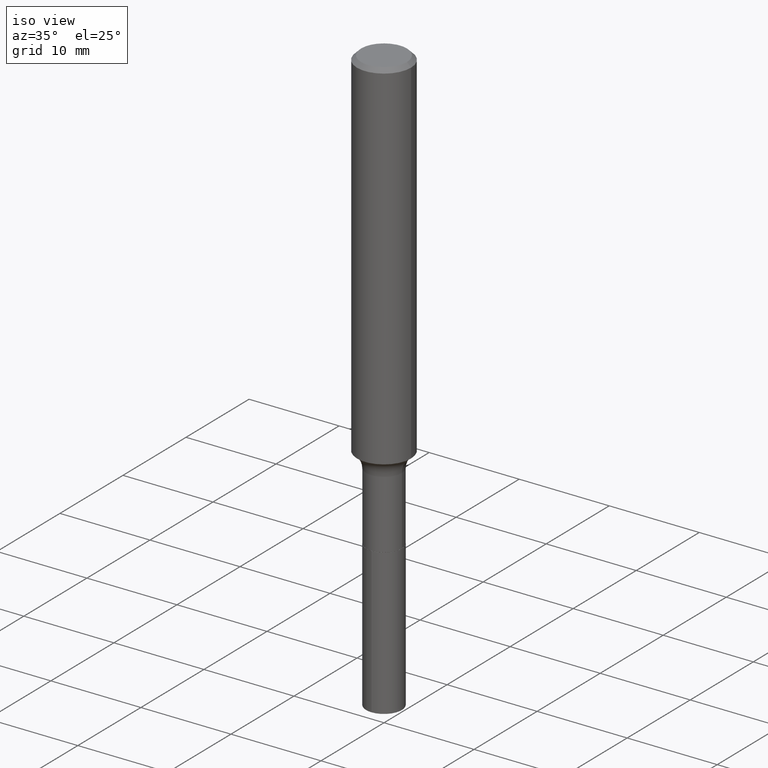
[diagram: clean part render]
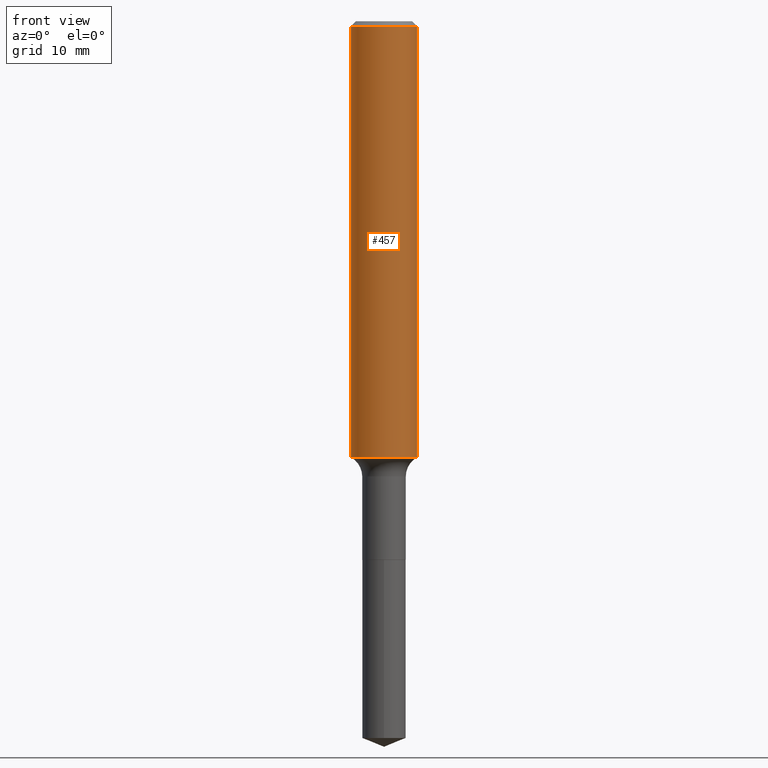
[diagram: tour spotlight — one face highlighted and labeled with its STEP entity id]
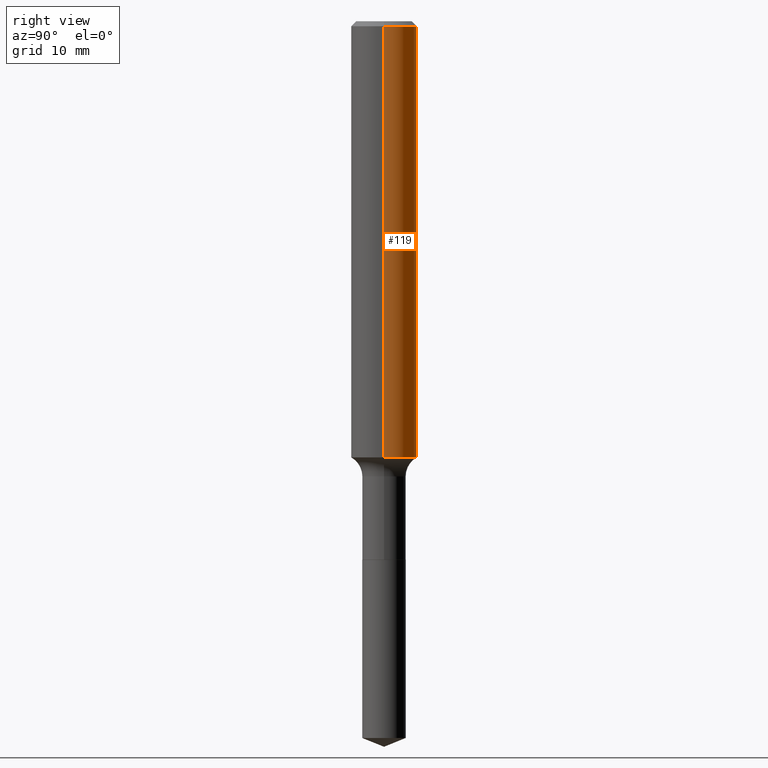
[diagram: tour spotlight — one face highlighted and labeled with its STEP entity id]
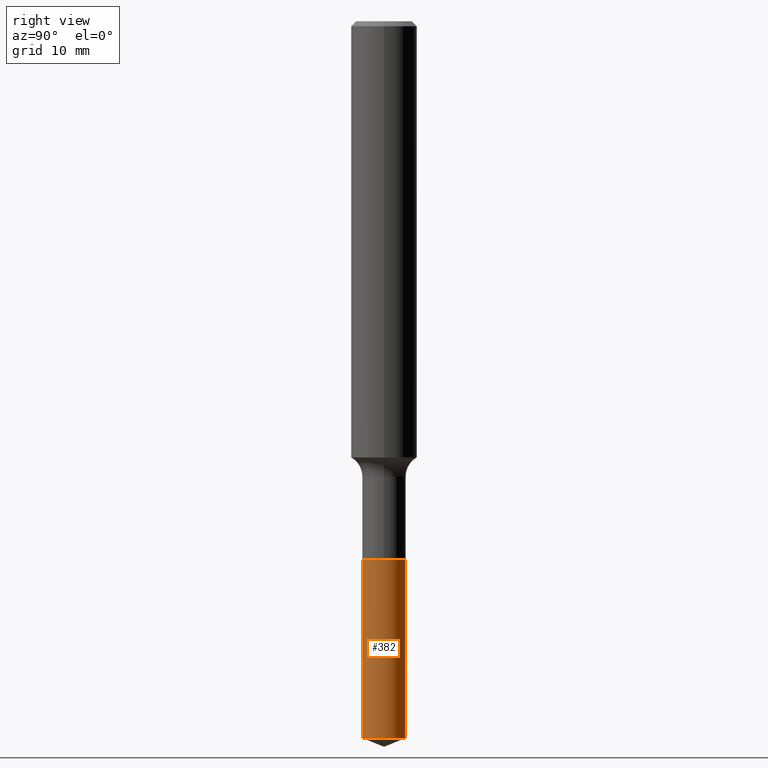
[diagram: tour spotlight — one face highlighted and labeled with its STEP entity id]
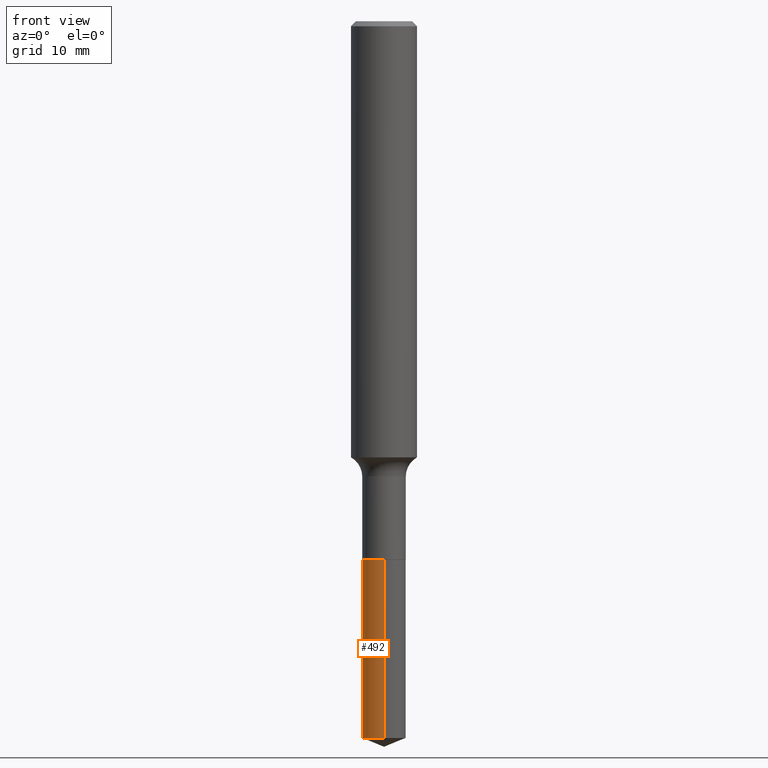
[diagram: tour spotlight — one face highlighted and labeled with its STEP entity id]
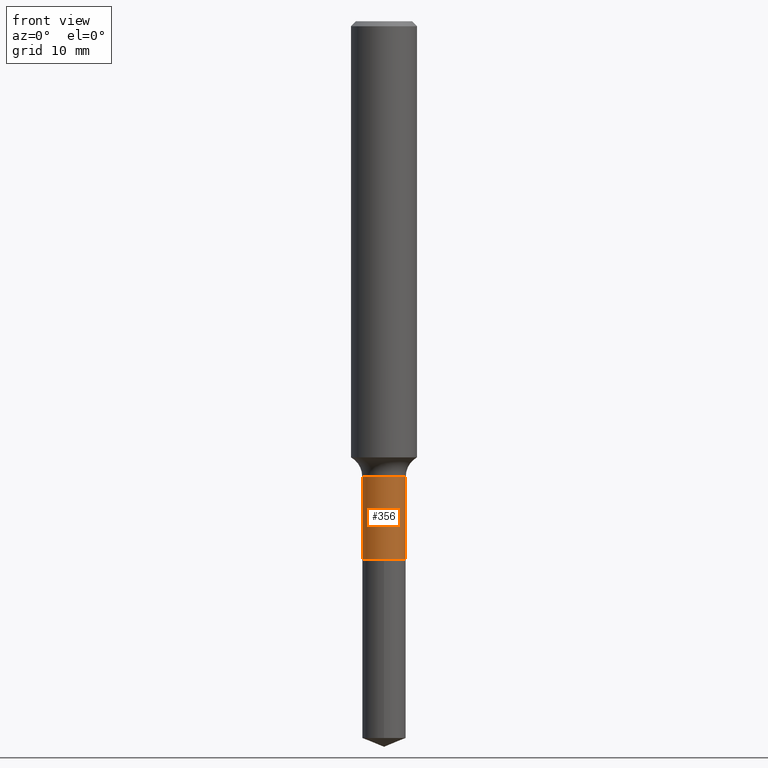
[diagram: tour spotlight — one face highlighted and labeled with its STEP entity id]
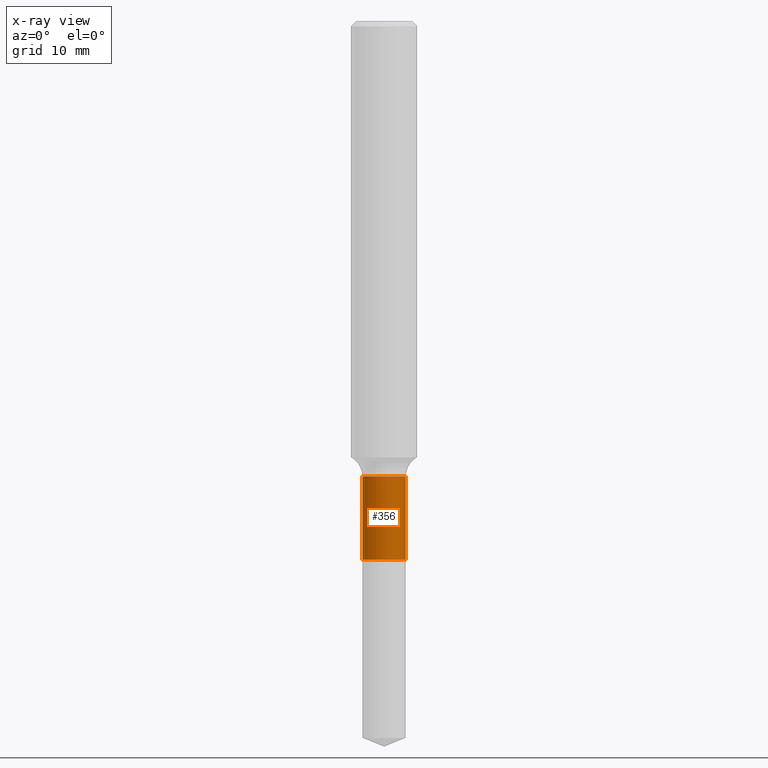
[diagram: x-ray of the same camera — body ghosted, this tour face saturated]
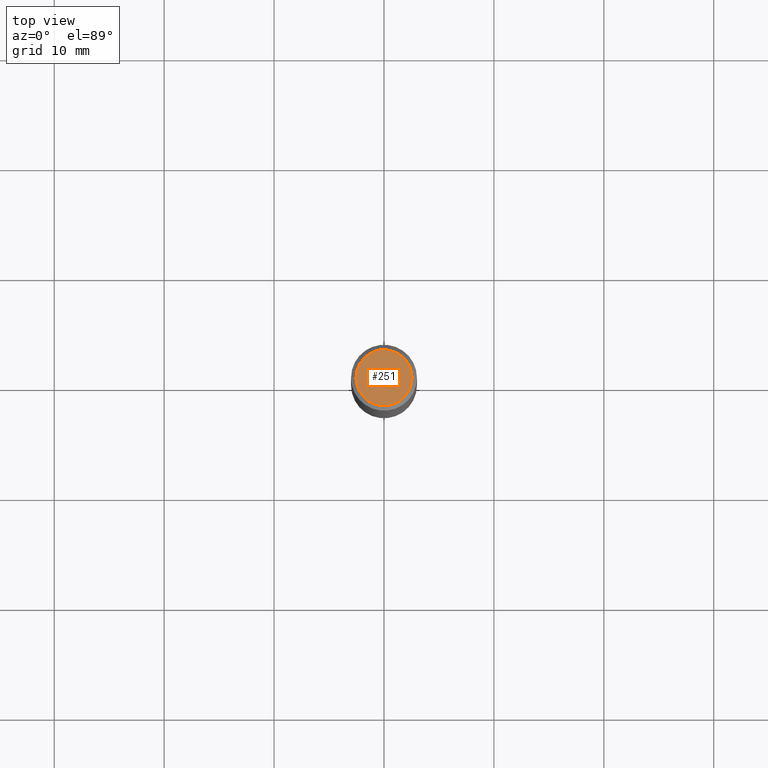
[diagram: tour spotlight — one face highlighted and labeled with its STEP entity id]
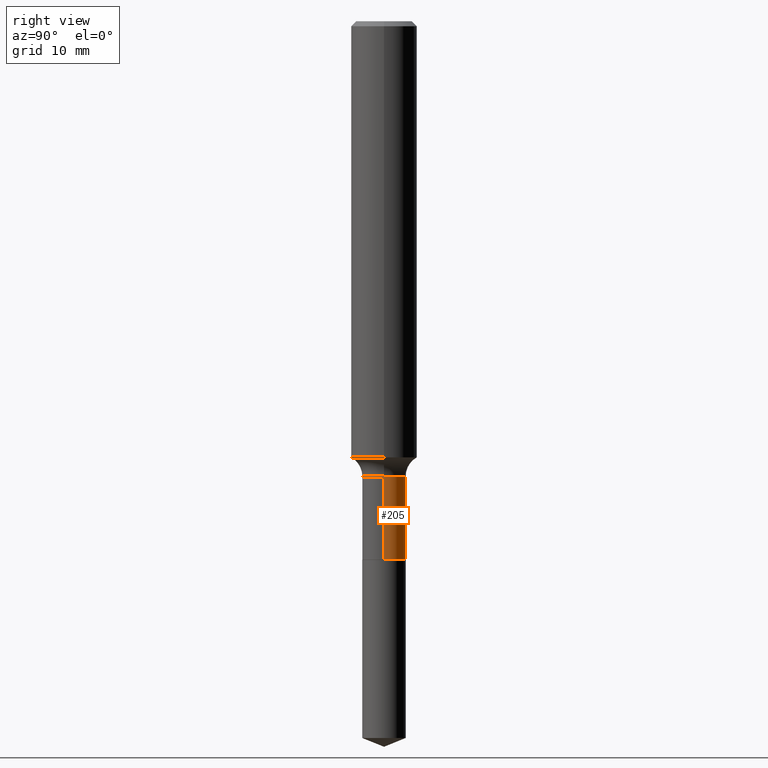
[diagram: tour spotlight — one face highlighted and labeled with its STEP entity id]
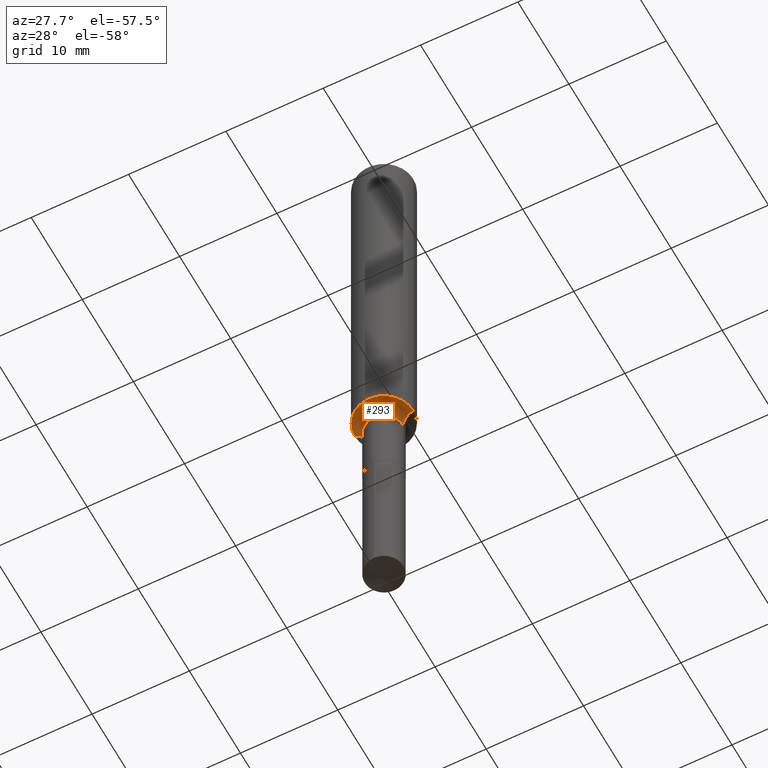
[diagram: tour spotlight — one face highlighted and labeled with its STEP entity id]
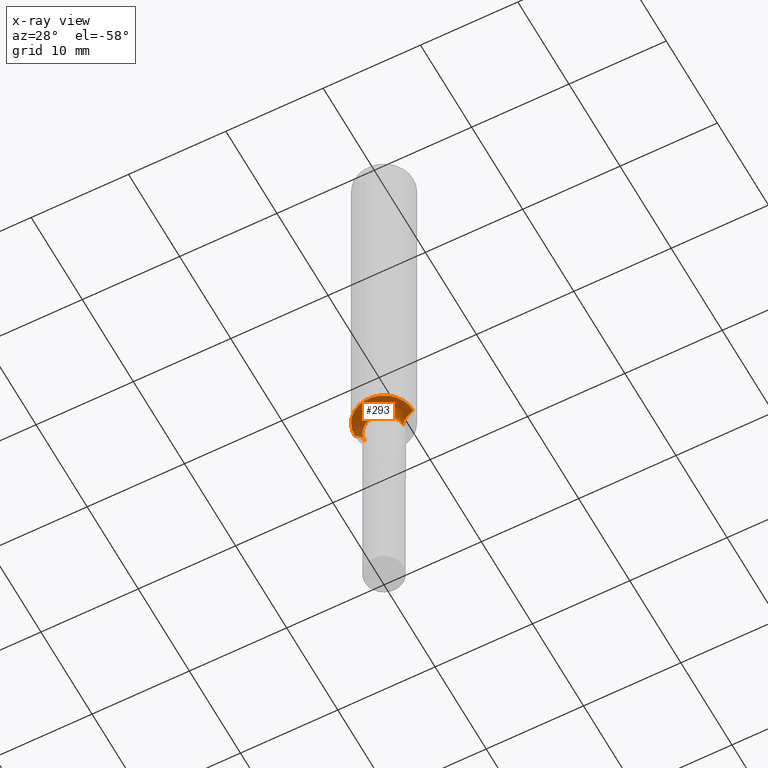
[diagram: x-ray of the same camera — body ghosted, this tour face saturated]
A machine part: a face-by-face anatomy tour. The part has 17 B-rep faces; the first image is the clean iso view, then the 8 largest visible faces are spotlighted one at a time (largest first), each with its STEP entity span.

Face 1 — front view, entity #457. In plain terms, the highlighted cylindrical surface (edge-blend (fillet) strip) has radius 2.9997 mm, axis along (-0, 0, 1).
Definition (entity closure, byte-faithful):
#3 = CYLINDRICAL_SURFACE ( 'NONE', #459, 0.1181000000000001077 ) ;
#13 = CARTESIAN_POINT ( 'NONE',  ( 0.1180999999999999966, -8.865394841523547570E-16, -0.01771500000000010913 ) ) ;
#25 = LINE ( 'NONE', #63, #409 ) ;
#45 = CIRCLE ( 'NONE', #116, 0.1180999999999999966 ) ;
#56 = FACE_OUTER_BOUND ( 'NONE', #448, .T. ) ;
#63 = CARTESIAN_POINT ( 'NONE',  ( -0.1181000000000001077, 8.391509709326790846E-16, -5.809262341591049389E-30 ) ) ;
#91 = DIRECTION ( 'NONE',  ( -2.445468806185136597E-29, 3.491481338843145583E-15, 1.000000000000000000 ) ) ;
#99 = VERTEX_POINT ( 'NONE', #13 ) ;
#102 = DIRECTION ( 'NONE',  ( -2.445468806185136877E-29, 3.491481338843145188E-15, 1.000000000000000000 ) ) ;
#116 = AXIS2_PLACEMENT_3D ( 'NONE', #284, #91, #318 ) ;
#126 = EDGE_CURVE ( 'NONE', #307, #99, #45, .T. ) ;
#134 = ORIENTED_EDGE ( 'NONE', *, *, #368, .F. ) ;
#144 = CARTESIAN_POINT ( 'NONE',  ( -0.1181000000000001632, -4.614481620681204759E-15, -1.561982454536293918 ) ) ;
#214 = CARTESIAN_POINT ( 'NONE',  ( 0.000000000000000000, 0.000000000000000000, 0.000000000000000000 ) ) ;
#231 = CIRCLE ( 'NONE', #275, 0.1181000000000002048 ) ;
#255 = DIRECTION ( 'NONE',  ( -2.445468806185136597E-29, 3.491481338843145583E-15, 1.000000000000000000 ) ) ;
#256 = EDGE_CURVE ( 'NONE', #455, #99, #332, .T. ) ;
#265 = VERTEX_POINT ( 'NONE', #144 ) ;
#275 = AXIS2_PLACEMENT_3D ( 'NONE', #373, #255, #370 ) ;
#283 = VECTOR ( 'NONE', #482, 39.37007874015748143 ) ;
#284 = CARTESIAN_POINT ( 'NONE',  ( 4.332147990156996744E-31, -6.185159191760670395E-17, -0.01771500000000010913 ) ) ;
#290 = DIRECTION ( 'NONE',  ( -2.445468806185136597E-29, 3.491481338843145583E-15, 1.000000000000000000 ) ) ;
#307 = VERTEX_POINT ( 'NONE', #437 ) ;
#318 = DIRECTION ( 'NONE',  ( 1.000000000000000000, -6.982962677686266711E-15, 0.000000000000000000 ) ) ;
#325 = ORIENTED_EDGE ( 'NONE', *, *, #256, .T. ) ;
#327 = ORIENTED_EDGE ( 'NONE', *, *, #126, .F. ) ;
#332 = LINE ( 'NONE', #475, #283 ) ;
#346 = EDGE_CURVE ( 'NONE', #265, #455, #231, .T. ) ;
#368 = EDGE_CURVE ( 'NONE', #265, #307, #25, .T. ) ;
#370 = DIRECTION ( 'NONE',  ( 1.000000000000000000, -6.982962677686268288E-15, 0.000000000000000000 ) ) ;
#373 = CARTESIAN_POINT ( 'NONE',  ( 3.819779368377000263E-29, -5.453632591613882956E-15, -1.561982454536293918 ) ) ;
#392 = CARTESIAN_POINT ( 'NONE',  ( 0.1181000000000001632, -6.278320483848632008E-15, -1.561982454536293918 ) ) ;
#409 = VECTOR ( 'NONE', #102, 39.37007874015748143 ) ;
#411 = ORIENTED_EDGE ( 'NONE', *, *, #346, .T. ) ;
#426 = DIRECTION ( 'NONE',  ( 1.000000000000000000, -6.982962677686266711E-15, 4.876176775795935793E-29 ) ) ;
#437 = CARTESIAN_POINT ( 'NONE',  ( -0.1180999999999999966, -1.918591120833065197E-15, -0.01771500000000010913 ) ) ;
#448 = EDGE_LOOP ( 'NONE', ( #134, #411, #325, #327 ) ) ;
#455 = VERTEX_POINT ( 'NONE', #392 ) ;
#457 = ADVANCED_FACE ( 'NONE', ( #56 ), #3, .T. ) ;
#459 = AXIS2_PLACEMENT_3D ( 'NONE', #214, #290, #426 ) ;
#475 = CARTESIAN_POINT ( 'NONE',  ( 0.1181000000000001077, -8.246878922347488542E-16, 5.758764772215005345E-30 ) ) ;
#482 = DIRECTION ( 'NONE',  ( -2.445468806185136877E-29, 3.491481338843145188E-15, 1.000000000000000000 ) ) ;

Face 2 — right view, entity #119. In plain terms, the highlighted cylindrical surface (edge-blend (fillet) strip) has radius 2.9997 mm, axis along (-0, 0, 1).
Definition (entity closure, byte-faithful):
#6 = CYLINDRICAL_SURFACE ( 'NONE', #8, 0.1181000000000001077 ) ;
#8 = AXIS2_PLACEMENT_3D ( 'NONE', #465, #354, #467 ) ;
#9 = DIRECTION ( 'NONE',  ( -2.445468806185136597E-29, 3.491481338843145583E-15, 1.000000000000000000 ) ) ;
#13 = CARTESIAN_POINT ( 'NONE',  ( 0.1180999999999999966, -8.865394841523547570E-16, -0.01771500000000010913 ) ) ;
#25 = LINE ( 'NONE', #63, #409 ) ;
#37 = CIRCLE ( 'NONE', #220, 0.1181000000000002048 ) ;
#63 = CARTESIAN_POINT ( 'NONE',  ( -0.1181000000000001077, 8.391509709326790846E-16, -5.809262341591049389E-30 ) ) ;
#78 = ORIENTED_EDGE ( 'NONE', *, *, #473, .T. ) ;
#90 = CIRCLE ( 'NONE', #372, 0.1180999999999999966 ) ;
#94 = ORIENTED_EDGE ( 'NONE', *, *, #399, .F. ) ;
#99 = VERTEX_POINT ( 'NONE', #13 ) ;
#102 = DIRECTION ( 'NONE',  ( -2.445468806185136877E-29, 3.491481338843145188E-15, 1.000000000000000000 ) ) ;
#108 = DIRECTION ( 'NONE',  ( -2.445468806185136597E-29, 3.491481338843145583E-15, 1.000000000000000000 ) ) ;
#119 = ADVANCED_FACE ( 'NONE', ( #203 ), #6, .T. ) ;
#144 = CARTESIAN_POINT ( 'NONE',  ( -0.1181000000000001632, -4.614481620681204759E-15, -1.561982454536293918 ) ) ;
#146 = ORIENTED_EDGE ( 'NONE', *, *, #256, .F. ) ;
#154 = EDGE_LOOP ( 'NONE', ( #78, #388, #94, #146 ) ) ;
#163 = CARTESIAN_POINT ( 'NONE',  ( 3.819779368377000263E-29, -5.453632591613882956E-15, -1.561982454536293918 ) ) ;
#170 = DIRECTION ( 'NONE',  ( 1.000000000000000000, -6.982962677686268288E-15, 0.000000000000000000 ) ) ;
#203 = FACE_OUTER_BOUND ( 'NONE', #154, .T. ) ;
#220 = AXIS2_PLACEMENT_3D ( 'NONE', #163, #9, #170 ) ;
#228 = DIRECTION ( 'NONE',  ( 1.000000000000000000, -6.982962677686266711E-15, 0.000000000000000000 ) ) ;
#256 = EDGE_CURVE ( 'NONE', #455, #99, #332, .T. ) ;
#265 = VERTEX_POINT ( 'NONE', #144 ) ;
#283 = VECTOR ( 'NONE', #482, 39.37007874015748143 ) ;
#307 = VERTEX_POINT ( 'NONE', #437 ) ;
#332 = LINE ( 'NONE', #475, #283 ) ;
#354 = DIRECTION ( 'NONE',  ( -2.445468806185136597E-29, 3.491481338843145583E-15, 1.000000000000000000 ) ) ;
#368 = EDGE_CURVE ( 'NONE', #265, #307, #25, .T. ) ;
#372 = AXIS2_PLACEMENT_3D ( 'NONE', #439, #108, #228 ) ;
#388 = ORIENTED_EDGE ( 'NONE', *, *, #368, .T. ) ;
#392 = CARTESIAN_POINT ( 'NONE',  ( 0.1181000000000001632, -6.278320483848632008E-15, -1.561982454536293918 ) ) ;
#399 = EDGE_CURVE ( 'NONE', #99, #307, #90, .T. ) ;
#409 = VECTOR ( 'NONE', #102, 39.37007874015748143 ) ;
#437 = CARTESIAN_POINT ( 'NONE',  ( -0.1180999999999999966, -1.918591120833065197E-15, -0.01771500000000010913 ) ) ;
#439 = CARTESIAN_POINT ( 'NONE',  ( 4.332147990156996744E-31, -6.185159191760670395E-17, -0.01771500000000010913 ) ) ;
#455 = VERTEX_POINT ( 'NONE', #392 ) ;
#465 = CARTESIAN_POINT ( 'NONE',  ( 0.000000000000000000, 0.000000000000000000, 0.000000000000000000 ) ) ;
#467 = DIRECTION ( 'NONE',  ( 1.000000000000000000, -6.982962677686266711E-15, 4.876176775795935793E-29 ) ) ;
#473 = EDGE_CURVE ( 'NONE', #455, #265, #37, .T. ) ;
#475 = CARTESIAN_POINT ( 'NONE',  ( 0.1181000000000001077, -8.246878922347488542E-16, 5.758764772215005345E-30 ) ) ;
#482 = DIRECTION ( 'NONE',  ( -2.445468806185136877E-29, 3.491481338843145188E-15, 1.000000000000000000 ) ) ;

Face 3 — right view, entity #382. In plain terms, the highlighted cylindrical surface (edge-blend (fillet) strip) has radius 1.9837 mm, axis along (-0, 0, 1).
Definition (entity closure, byte-faithful):
#20 = VERTEX_POINT ( 'NONE', #397 ) ;
#22 = DIRECTION ( 'NONE',  ( -2.445416049279205825E-29, 3.491556889735175498E-15, 1.000000000000000000 ) ) ;
#31 = ORIENTED_EDGE ( 'NONE', *, *, #438, .T. ) ;
#36 = VERTEX_POINT ( 'NONE', #440 ) ;
#52 = CARTESIAN_POINT ( 'NONE',  ( 4.717553874011746679E-29, -6.735416650762311704E-15, -1.929099999999999815 ) ) ;
#85 = ORIENTED_EDGE ( 'NONE', *, *, #304, .F. ) ;
#86 = DIRECTION ( 'NONE',  ( -6.982962677686265133E-15, -1.000000000000000000, 3.497884755011860410E-15 ) ) ;
#101 = LINE ( 'NONE', #142, #398 ) ;
#136 = VERTEX_POINT ( 'NONE', #289 ) ;
#142 = CARTESIAN_POINT ( 'NONE',  ( -5.453693851272501048E-16, -0.07810000000000671960, -1.929099999999999593 ) ) ;
#143 = CYLINDRICAL_SURFACE ( 'NONE', #238, 0.07810000000000000275 ) ;
#190 = LINE ( 'NONE', #260, #310 ) ;
#193 = EDGE_CURVE ( 'NONE', #136, #20, #281, .T. ) ;
#213 = DIRECTION ( 'NONE',  ( -2.445416049279205825E-29, 3.491556889735175103E-15, 1.000000000000000000 ) ) ;
#217 = CARTESIAN_POINT ( 'NONE',  ( 6.277107081647638658E-29, -8.962141525915846057E-15, -2.566845551762275246 ) ) ;
#235 = EDGE_LOOP ( 'NONE', ( #362, #31, #236, #85 ) ) ;
#236 = ORIENTED_EDGE ( 'NONE', *, *, #193, .F. ) ;
#238 = AXIS2_PLACEMENT_3D ( 'NONE', #486, #435, #262 ) ;
#239 = EDGE_CURVE ( 'NONE', #442, #36, #490, .T. ) ;
#254 = DIRECTION ( 'NONE',  ( -6.982962677686265133E-15, -1.000000000000000000, 0.000000000000000000 ) ) ;
#260 = CARTESIAN_POINT ( 'NONE',  ( 5.549338766286853006E-16, 0.07809999999999327203, -1.929100000000000259 ) ) ;
#262 = DIRECTION ( 'NONE',  ( -6.982962677686265133E-15, -1.000000000000000000, 3.497884755011860410E-15 ) ) ;
#281 = CIRCLE ( 'NONE', #377, 0.07810000000000000275 ) ;
#289 = CARTESIAN_POINT ( 'NONE',  ( -5.453693851272501048E-16, -0.07810000000000671960, -1.929099999999999593 ) ) ;
#294 = DIRECTION ( 'NONE',  ( -2.445416049279205825E-29, 3.491556889735175498E-15, 1.000000000000000000 ) ) ;
#304 = EDGE_CURVE ( 'NONE', #442, #136, #101, .T. ) ;
#310 = VECTOR ( 'NONE', #22, 39.37007874015748143 ) ;
#362 = ORIENTED_EDGE ( 'NONE', *, *, #239, .T. ) ;
#366 = FACE_OUTER_BOUND ( 'NONE', #235, .T. ) ;
#377 = AXIS2_PLACEMENT_3D ( 'NONE', #52, #420, #86 ) ;
#382 = ADVANCED_FACE ( 'NONE', ( #366 ), #143, .T. ) ;
#391 = AXIS2_PLACEMENT_3D ( 'NONE', #217, #213, #254 ) ;
#397 = CARTESIAN_POINT ( 'NONE',  ( 5.549338766287009792E-16, 0.07809999999999327203, -1.929100000000000259 ) ) ;
#398 = VECTOR ( 'NONE', #294, 39.37007874015748143 ) ;
#401 = CARTESIAN_POINT ( 'NONE',  ( -5.453693851272348206E-16, -0.07810000000000898168, -2.566845551762275246 ) ) ;
#420 = DIRECTION ( 'NONE',  ( -2.445416049279205825E-29, 3.491556889735175103E-15, 1.000000000000000000 ) ) ;
#435 = DIRECTION ( 'NONE',  ( -2.445416049279205825E-29, 3.491556889735175103E-15, 1.000000000000000000 ) ) ;
#438 = EDGE_CURVE ( 'NONE', #36, #20, #190, .T. ) ;
#440 = CARTESIAN_POINT ( 'NONE',  ( 5.549338766287010778E-16, 0.07809999999999106546, -2.566845551762275246 ) ) ;
#442 = VERTEX_POINT ( 'NONE', #401 ) ;
#486 = CARTESIAN_POINT ( 'NONE',  ( 4.717553874011746679E-29, -6.735416650762311704E-15, -1.929099999999999815 ) ) ;
#490 = CIRCLE ( 'NONE', #391, 0.07810000000000000275 ) ;

Face 4 — front view, entity #492. In plain terms, the highlighted cylindrical surface (edge-blend (fillet) strip) has radius 1.9837 mm, axis along (-0, 0, 1).
Definition (entity closure, byte-faithful):
#20 = VERTEX_POINT ( 'NONE', #397 ) ;
#22 = DIRECTION ( 'NONE',  ( -2.445416049279205825E-29, 3.491556889735175498E-15, 1.000000000000000000 ) ) ;
#36 = VERTEX_POINT ( 'NONE', #440 ) ;
#44 = DIRECTION ( 'NONE',  ( -6.982962677686265133E-15, -1.000000000000000000, 3.497884755011860410E-15 ) ) ;
#50 = EDGE_CURVE ( 'NONE', #36, #442, #252, .T. ) ;
#70 = FACE_OUTER_BOUND ( 'NONE', #75, .T. ) ;
#75 = EDGE_LOOP ( 'NONE', ( #302, #111, #311, #480 ) ) ;
#77 = EDGE_CURVE ( 'NONE', #20, #136, #210, .T. ) ;
#87 = AXIS2_PLACEMENT_3D ( 'NONE', #488, #89, #319 ) ;
#89 = DIRECTION ( 'NONE',  ( -2.445416049279205825E-29, 3.491556889735175103E-15, 1.000000000000000000 ) ) ;
#101 = LINE ( 'NONE', #142, #398 ) ;
#111 = ORIENTED_EDGE ( 'NONE', *, *, #50, .T. ) ;
#128 = DIRECTION ( 'NONE',  ( -2.445416049279205825E-29, 3.491556889735175103E-15, 1.000000000000000000 ) ) ;
#136 = VERTEX_POINT ( 'NONE', #289 ) ;
#142 = CARTESIAN_POINT ( 'NONE',  ( -5.453693851272501048E-16, -0.07810000000000671960, -1.929099999999999593 ) ) ;
#156 = AXIS2_PLACEMENT_3D ( 'NONE', #297, #329, #183 ) ;
#183 = DIRECTION ( 'NONE',  ( -6.982962677686265133E-15, -1.000000000000000000, 3.497884755011860410E-15 ) ) ;
#190 = LINE ( 'NONE', #260, #310 ) ;
#210 = CIRCLE ( 'NONE', #479, 0.07810000000000000275 ) ;
#227 = CYLINDRICAL_SURFACE ( 'NONE', #156, 0.07810000000000000275 ) ;
#252 = CIRCLE ( 'NONE', #87, 0.07810000000000000275 ) ;
#260 = CARTESIAN_POINT ( 'NONE',  ( 5.549338766286853006E-16, 0.07809999999999327203, -1.929100000000000259 ) ) ;
#289 = CARTESIAN_POINT ( 'NONE',  ( -5.453693851272501048E-16, -0.07810000000000671960, -1.929099999999999593 ) ) ;
#294 = DIRECTION ( 'NONE',  ( -2.445416049279205825E-29, 3.491556889735175498E-15, 1.000000000000000000 ) ) ;
#297 = CARTESIAN_POINT ( 'NONE',  ( 4.717553874011746679E-29, -6.735416650762311704E-15, -1.929099999999999815 ) ) ;
#302 = ORIENTED_EDGE ( 'NONE', *, *, #438, .F. ) ;
#304 = EDGE_CURVE ( 'NONE', #442, #136, #101, .T. ) ;
#310 = VECTOR ( 'NONE', #22, 39.37007874015748143 ) ;
#311 = ORIENTED_EDGE ( 'NONE', *, *, #304, .T. ) ;
#319 = DIRECTION ( 'NONE',  ( -6.982962677686265133E-15, -1.000000000000000000, 0.000000000000000000 ) ) ;
#329 = DIRECTION ( 'NONE',  ( -2.445416049279205825E-29, 3.491556889735175103E-15, 1.000000000000000000 ) ) ;
#389 = CARTESIAN_POINT ( 'NONE',  ( 4.717553874011746679E-29, -6.735416650762311704E-15, -1.929099999999999815 ) ) ;
#397 = CARTESIAN_POINT ( 'NONE',  ( 5.549338766287009792E-16, 0.07809999999999327203, -1.929100000000000259 ) ) ;
#398 = VECTOR ( 'NONE', #294, 39.37007874015748143 ) ;
#401 = CARTESIAN_POINT ( 'NONE',  ( -5.453693851272348206E-16, -0.07810000000000898168, -2.566845551762275246 ) ) ;
#438 = EDGE_CURVE ( 'NONE', #36, #20, #190, .T. ) ;
#440 = CARTESIAN_POINT ( 'NONE',  ( 5.549338766287010778E-16, 0.07809999999999106546, -2.566845551762275246 ) ) ;
#442 = VERTEX_POINT ( 'NONE', #401 ) ;
#479 = AXIS2_PLACEMENT_3D ( 'NONE', #389, #128, #44 ) ;
#480 = ORIENTED_EDGE ( 'NONE', *, *, #77, .F. ) ;
#488 = CARTESIAN_POINT ( 'NONE',  ( 6.277107081647638658E-29, -8.962141525915846057E-15, -2.566845551762275246 ) ) ;
#492 = ADVANCED_FACE ( 'NONE', ( #70 ), #227, .T. ) ;

Face 5 — front view, entity #356. An x-ray twin of the same camera follows (body ghosted, this face saturated) — the face is partly hidden behind the body. In plain terms, the highlighted cylindrical surface (edge-blend (fillet) strip) has radius 1.9837 mm, axis along (-0, 0, 1).
Definition (entity closure, byte-faithful):
#7 = CARTESIAN_POINT ( 'NONE',  ( 3.986358700962389845E-29, -5.691463730448209971E-15, -1.630099999999999660 ) ) ;
#15 = CARTESIAN_POINT ( 'NONE',  ( 0.000000000000000000, 0.000000000000000000, 0.000000000000000000 ) ) ;
#16 = EDGE_CURVE ( 'NONE', #26, #67, #288, .T. ) ;
#23 = EDGE_LOOP ( 'NONE', ( #137, #225, #271, #374 ) ) ;
#26 = VERTEX_POINT ( 'NONE', #414 ) ;
#27 = CIRCLE ( 'NONE', #443, 0.07810000000000000275 ) ;
#58 = EDGE_CURVE ( 'NONE', #157, #67, #385, .T. ) ;
#67 = VERTEX_POINT ( 'NONE', #207 ) ;
#96 = CARTESIAN_POINT ( 'NONE',  ( 0.07809999999999997500, -5.453693851272973378E-16, 3.808294061896625002E-30 ) ) ;
#97 = DIRECTION ( 'NONE',  ( -2.445468806185136877E-29, 3.491481338843145188E-15, 1.000000000000000000 ) ) ;
#105 = DIRECTION ( 'NONE',  ( -2.445468806185136597E-29, 3.491481338843145583E-15, 1.000000000000000000 ) ) ;
#110 = FACE_OUTER_BOUND ( 'NONE', #23, .T. ) ;
#137 = ORIENTED_EDGE ( 'NONE', *, *, #287, .F. ) ;
#139 = DIRECTION ( 'NONE',  ( 1.000000000000000000, -6.982962677686266711E-15, 0.000000000000000000 ) ) ;
#157 = VERTEX_POINT ( 'NONE', #320 ) ;
#173 = DIRECTION ( 'NONE',  ( -2.445468806185136597E-29, 3.491481338843145583E-15, 1.000000000000000000 ) ) ;
#207 = CARTESIAN_POINT ( 'NONE',  ( 0.07809999999999996112, -6.236833115575507408E-15, -1.630099999999999660 ) ) ;
#218 = AXIS2_PLACEMENT_3D ( 'NONE', #7, #173, #461 ) ;
#225 = ORIENTED_EDGE ( 'NONE', *, *, #273, .T. ) ;
#226 = DIRECTION ( 'NONE',  ( -2.445468806185136597E-29, 3.491481338843145583E-15, 1.000000000000000000 ) ) ;
#250 = DIRECTION ( 'NONE',  ( -2.445468806185136877E-29, 3.491481338843145188E-15, 1.000000000000000000 ) ) ;
#271 = ORIENTED_EDGE ( 'NONE', *, *, #16, .T. ) ;
#273 = EDGE_CURVE ( 'NONE', #371, #26, #27, .T. ) ;
#287 = EDGE_CURVE ( 'NONE', #371, #157, #432, .T. ) ;
#288 = LINE ( 'NONE', #96, #427 ) ;
#291 = CARTESIAN_POINT ( 'NONE',  ( -0.07809999999999997500, 5.549338766286380675E-16, -3.841688305489080574E-30 ) ) ;
#296 = CARTESIAN_POINT ( 'NONE',  ( 4.716331139608653877E-29, -6.733670910092890200E-15, -1.928599999999999648 ) ) ;
#320 = CARTESIAN_POINT ( 'NONE',  ( -0.07809999999999996112, -5.657633443641911821E-15, -1.630099999999999660 ) ) ;
#333 = DIRECTION ( 'NONE',  ( 1.000000000000000000, -6.982962677686267499E-15, 4.876176775795936353E-29 ) ) ;
#340 = AXIS2_PLACEMENT_3D ( 'NONE', #15, #105, #333 ) ;
#356 = ADVANCED_FACE ( 'NONE', ( #110 ), #476, .T. ) ;
#371 = VERTEX_POINT ( 'NONE', #405 ) ;
#374 = ORIENTED_EDGE ( 'NONE', *, *, #58, .F. ) ;
#385 = CIRCLE ( 'NONE', #218, 0.07809999999999996112 ) ;
#405 = CARTESIAN_POINT ( 'NONE',  ( -0.07810000000000000275, -5.657633443641911821E-15, -1.928599999999999648 ) ) ;
#414 = CARTESIAN_POINT ( 'NONE',  ( 0.07810000000000000275, -7.279040295220186848E-15, -1.928599999999999648 ) ) ;
#416 = VECTOR ( 'NONE', #97, 39.37007874015748143 ) ;
#427 = VECTOR ( 'NONE', #250, 39.37007874015748143 ) ;
#432 = LINE ( 'NONE', #291, #416 ) ;
#443 = AXIS2_PLACEMENT_3D ( 'NONE', #296, #226, #139 ) ;
#461 = DIRECTION ( 'NONE',  ( 1.000000000000000000, -6.982962677686270655E-15, 0.000000000000000000 ) ) ;
#476 = CYLINDRICAL_SURFACE ( 'NONE', #340, 0.07809999999999997500 ) ;

Face 6 — top view, entity #251. In plain terms, the highlighted planar face has unit normal (0, -0, -1).
Definition (entity closure, byte-faithful):
#1 = CARTESIAN_POINT ( 'NONE',  ( -0.1003850000000000159, 7.319105043583386689E-16, -3.975387207052680940E-17 ) ) ;
#47 = AXIS2_PLACEMENT_3D ( 'NONE', #403, #365, #184 ) ;
#65 = FACE_OUTER_BOUND ( 'NONE', #460, .T. ) ;
#129 = CARTESIAN_POINT ( 'NONE',  ( 9.721685407353558503E-46, -1.387999024809845952E-31, -3.975387207052179891E-17 ) ) ;
#141 = VERTEX_POINT ( 'NONE', #1 ) ;
#151 = ORIENTED_EDGE ( 'NONE', *, *, #341, .T. ) ;
#166 = EDGE_CURVE ( 'NONE', #195, #141, #441, .T. ) ;
#167 = CARTESIAN_POINT ( 'NONE',  ( 0.1003850000000000159, -7.803837484803599345E-16, -3.975387207051662201E-17 ) ) ;
#175 = CARTESIAN_POINT ( 'NONE',  ( 4.860842703676779252E-46, -6.939995124049229759E-32, -1.987693603526089945E-17 ) ) ;
#178 = PLANE ( 'NONE',  #433 ) ;
#184 = DIRECTION ( 'NONE',  ( 1.000000000000000000, -6.982962677686266711E-15, 4.879445411049954809E-29 ) ) ;
#195 = VERTEX_POINT ( 'NONE', #167 ) ;
#216 = AXIS2_PLACEMENT_3D ( 'NONE', #129, #425, #431 ) ;
#251 = ADVANCED_FACE ( 'NONE', ( #65 ), #178, .F. ) ;
#258 = DIRECTION ( 'NONE',  ( -1.000000000000000000, 6.982962677686265922E-15, -4.876176775795935793E-29 ) ) ;
#317 = CIRCLE ( 'NONE', #47, 0.1003850000000000159 ) ;
#341 = EDGE_CURVE ( 'NONE', #141, #195, #317, .T. ) ;
#365 = DIRECTION ( 'NONE',  ( -2.445468806185136597E-29, 3.491481338843145583E-15, 1.000000000000000000 ) ) ;
#394 = DIRECTION ( 'NONE',  ( 2.438088387897960049E-29, -3.491481338843145188E-15, -1.000000000000000000 ) ) ;
#403 = CARTESIAN_POINT ( 'NONE',  ( 9.721685407353558503E-46, -1.387999024809845952E-31, -3.975387207052179891E-17 ) ) ;
#425 = DIRECTION ( 'NONE',  ( -2.445468806185136597E-29, 3.491481338843145583E-15, 1.000000000000000000 ) ) ;
#430 = ORIENTED_EDGE ( 'NONE', *, *, #166, .T. ) ;
#431 = DIRECTION ( 'NONE',  ( 1.000000000000000000, -6.982962677686266711E-15, 4.879445411049954809E-29 ) ) ;
#433 = AXIS2_PLACEMENT_3D ( 'NONE', #175, #394, #258 ) ;
#441 = CIRCLE ( 'NONE', #216, 0.1003850000000000159 ) ;
#460 = EDGE_LOOP ( 'NONE', ( #151, #430 ) ) ;

Face 7 — right view, entity #205. In plain terms, the highlighted cylindrical surface (edge-blend (fillet) strip) has radius 1.9837 mm, axis along (-0, 0, 1).
Definition (entity closure, byte-faithful):
#4 = DIRECTION ( 'NONE',  ( 1.000000000000000000, -6.982962677686270655E-15, 0.000000000000000000 ) ) ;
#16 = EDGE_CURVE ( 'NONE', #26, #67, #288, .T. ) ;
#26 = VERTEX_POINT ( 'NONE', #414 ) ;
#32 = ORIENTED_EDGE ( 'NONE', *, *, #16, .F. ) ;
#64 = ORIENTED_EDGE ( 'NONE', *, *, #287, .T. ) ;
#67 = VERTEX_POINT ( 'NONE', #207 ) ;
#69 = DIRECTION ( 'NONE',  ( -2.445468806185136597E-29, 3.491481338843145583E-15, 1.000000000000000000 ) ) ;
#88 = CARTESIAN_POINT ( 'NONE',  ( 3.986358700962389845E-29, -5.691463730448209971E-15, -1.630099999999999660 ) ) ;
#95 = DIRECTION ( 'NONE',  ( -2.445468806185136597E-29, 3.491481338843145583E-15, 1.000000000000000000 ) ) ;
#96 = CARTESIAN_POINT ( 'NONE',  ( 0.07809999999999997500, -5.453693851272973378E-16, 3.808294061896625002E-30 ) ) ;
#97 = DIRECTION ( 'NONE',  ( -2.445468806185136877E-29, 3.491481338843145188E-15, 1.000000000000000000 ) ) ;
#130 = AXIS2_PLACEMENT_3D ( 'NONE', #357, #169, #212 ) ;
#157 = VERTEX_POINT ( 'NONE', #320 ) ;
#169 = DIRECTION ( 'NONE',  ( -2.445468806185136597E-29, 3.491481338843145583E-15, 1.000000000000000000 ) ) ;
#181 = EDGE_CURVE ( 'NONE', #67, #157, #299, .T. ) ;
#199 = AXIS2_PLACEMENT_3D ( 'NONE', #88, #95, #4 ) ;
#205 = ADVANCED_FACE ( 'NONE', ( #383 ), #208, .T. ) ;
#207 = CARTESIAN_POINT ( 'NONE',  ( 0.07809999999999996112, -6.236833115575507408E-15, -1.630099999999999660 ) ) ;
#208 = CYLINDRICAL_SURFACE ( 'NONE', #130, 0.07809999999999997500 ) ;
#211 = AXIS2_PLACEMENT_3D ( 'NONE', #300, #69, #264 ) ;
#212 = DIRECTION ( 'NONE',  ( 1.000000000000000000, -6.982962677686267499E-15, 4.876176775795936353E-29 ) ) ;
#248 = ORIENTED_EDGE ( 'NONE', *, *, #181, .F. ) ;
#250 = DIRECTION ( 'NONE',  ( -2.445468806185136877E-29, 3.491481338843145188E-15, 1.000000000000000000 ) ) ;
#264 = DIRECTION ( 'NONE',  ( 1.000000000000000000, -6.982962677686266711E-15, 0.000000000000000000 ) ) ;
#282 = CIRCLE ( 'NONE', #211, 0.07810000000000000275 ) ;
#287 = EDGE_CURVE ( 'NONE', #371, #157, #432, .T. ) ;
#288 = LINE ( 'NONE', #96, #427 ) ;
#291 = CARTESIAN_POINT ( 'NONE',  ( -0.07809999999999997500, 5.549338766286380675E-16, -3.841688305489080574E-30 ) ) ;
#299 = CIRCLE ( 'NONE', #199, 0.07809999999999996112 ) ;
#300 = CARTESIAN_POINT ( 'NONE',  ( 4.716331139608653877E-29, -6.733670910092890200E-15, -1.928599999999999648 ) ) ;
#320 = CARTESIAN_POINT ( 'NONE',  ( -0.07809999999999996112, -5.657633443641911821E-15, -1.630099999999999660 ) ) ;
#323 = EDGE_CURVE ( 'NONE', #26, #371, #282, .T. ) ;
#357 = CARTESIAN_POINT ( 'NONE',  ( 0.000000000000000000, 0.000000000000000000, 0.000000000000000000 ) ) ;
#371 = VERTEX_POINT ( 'NONE', #405 ) ;
#375 = ORIENTED_EDGE ( 'NONE', *, *, #323, .T. ) ;
#383 = FACE_OUTER_BOUND ( 'NONE', #454, .T. ) ;
#405 = CARTESIAN_POINT ( 'NONE',  ( -0.07810000000000000275, -5.657633443641911821E-15, -1.928599999999999648 ) ) ;
#414 = CARTESIAN_POINT ( 'NONE',  ( 0.07810000000000000275, -7.279040295220186848E-15, -1.928599999999999648 ) ) ;
#416 = VECTOR ( 'NONE', #97, 39.37007874015748143 ) ;
#427 = VECTOR ( 'NONE', #250, 39.37007874015748143 ) ;
#432 = LINE ( 'NONE', #291, #416 ) ;
#454 = EDGE_LOOP ( 'NONE', ( #375, #64, #248, #32 ) ) ;

Face 8 — auxiliary view, entity #293. An x-ray twin of the same camera follows (body ghosted, this face saturated) — the face is partly hidden behind the body. In plain terms, the highlighted toroidal blend (fillet) surface has major radius 3.9649 mm and minor (blend) radius 1.9812 mm.
Definition (entity closure, byte-faithful):
#7 = CARTESIAN_POINT ( 'NONE',  ( 3.986358700962389845E-29, -5.691463730448209971E-15, -1.630099999999999660 ) ) ;
#21 = DIRECTION ( 'NONE',  ( -2.445468806185136597E-29, 3.491481338843145583E-15, 1.000000000000000000 ) ) ;
#48 = CARTESIAN_POINT ( 'NONE',  ( -0.1560999999999999333, -4.582306519926694253E-15, -1.630099999999999660 ) ) ;
#55 = CIRCLE ( 'NONE', #162, 0.07799999999999993050 ) ;
#58 = EDGE_CURVE ( 'NONE', #157, #67, #385, .T. ) ;
#62 = DIRECTION ( 'NONE',  ( 1.000000000000000000, -6.982962677686269077E-15, 4.883557194083113462E-29 ) ) ;
#67 = VERTEX_POINT ( 'NONE', #207 ) ;
#100 = EDGE_CURVE ( 'NONE', #265, #157, #407, .T. ) ;
#106 = CARTESIAN_POINT ( 'NONE',  ( 3.986358700962389845E-29, -5.691463730448209971E-15, -1.630099999999999660 ) ) ;
#109 = ORIENTED_EDGE ( 'NONE', *, *, #100, .T. ) ;
#144 = CARTESIAN_POINT ( 'NONE',  ( -0.1181000000000001632, -4.614481620681204759E-15, -1.561982454536293918 ) ) ;
#150 = ORIENTED_EDGE ( 'NONE', *, *, #58, .T. ) ;
#157 = VERTEX_POINT ( 'NONE', #320 ) ;
#162 = AXIS2_PLACEMENT_3D ( 'NONE', #232, #396, #292 ) ;
#173 = DIRECTION ( 'NONE',  ( -2.445468806185136597E-29, 3.491481338843145583E-15, 1.000000000000000000 ) ) ;
#207 = CARTESIAN_POINT ( 'NONE',  ( 0.07809999999999996112, -6.236833115575507408E-15, -1.630099999999999660 ) ) ;
#218 = AXIS2_PLACEMENT_3D ( 'NONE', #7, #173, #461 ) ;
#229 = ORIENTED_EDGE ( 'NONE', *, *, #424, .F. ) ;
#231 = CIRCLE ( 'NONE', #275, 0.1181000000000002048 ) ;
#232 = CARTESIAN_POINT ( 'NONE',  ( 0.1560999999999999333, -6.781504204435035454E-15, -1.630099999999999660 ) ) ;
#253 = FACE_OUTER_BOUND ( 'NONE', #400, .T. ) ;
#255 = DIRECTION ( 'NONE',  ( -2.445468806185136597E-29, 3.491481338843145583E-15, 1.000000000000000000 ) ) ;
#265 = VERTEX_POINT ( 'NONE', #144 ) ;
#267 = AXIS2_PLACEMENT_3D ( 'NONE', #48, #285, #278 ) ;
#269 = ORIENTED_EDGE ( 'NONE', *, *, #346, .F. ) ;
#275 = AXIS2_PLACEMENT_3D ( 'NONE', #373, #255, #370 ) ;
#278 = DIRECTION ( 'NONE',  ( -1.000000000000000000, 7.105427357601005014E-15, 0.000000000000000000 ) ) ;
#285 = DIRECTION ( 'NONE',  ( 7.105427357601001859E-15, 1.000000000000000000, -3.491481338843145583E-15 ) ) ;
#292 = DIRECTION ( 'NONE',  ( 1.000000000000000000, -6.982962677686264344E-15, 0.000000000000000000 ) ) ;
#293 = ADVANCED_FACE ( 'NONE', ( #253 ), #469, .F. ) ;
#320 = CARTESIAN_POINT ( 'NONE',  ( -0.07809999999999996112, -5.657633443641911821E-15, -1.630099999999999660 ) ) ;
#346 = EDGE_CURVE ( 'NONE', #265, #455, #231, .T. ) ;
#370 = DIRECTION ( 'NONE',  ( 1.000000000000000000, -6.982962677686268288E-15, 0.000000000000000000 ) ) ;
#373 = CARTESIAN_POINT ( 'NONE',  ( 3.819779368377000263E-29, -5.453632591613882956E-15, -1.561982454536293918 ) ) ;
#385 = CIRCLE ( 'NONE', #218, 0.07809999999999996112 ) ;
#392 = CARTESIAN_POINT ( 'NONE',  ( 0.1181000000000001632, -6.278320483848632008E-15, -1.561982454536293918 ) ) ;
#396 = DIRECTION ( 'NONE',  ( -6.982962677686266711E-15, -1.000000000000000000, 3.491481338843145583E-15 ) ) ;
#400 = EDGE_LOOP ( 'NONE', ( #269, #109, #150, #229 ) ) ;
#407 = CIRCLE ( 'NONE', #267, 0.07799999999999993050 ) ;
#424 = EDGE_CURVE ( 'NONE', #455, #67, #55, .T. ) ;
#455 = VERTEX_POINT ( 'NONE', #392 ) ;
#461 = DIRECTION ( 'NONE',  ( 1.000000000000000000, -6.982962677686270655E-15, 0.000000000000000000 ) ) ;
#469 = TOROIDAL_SURFACE ( 'NONE', #481, 0.1560999999999999333, 0.07799999999999993050 ) ;
#481 = AXIS2_PLACEMENT_3D ( 'NONE', #106, #21, #62 ) ;